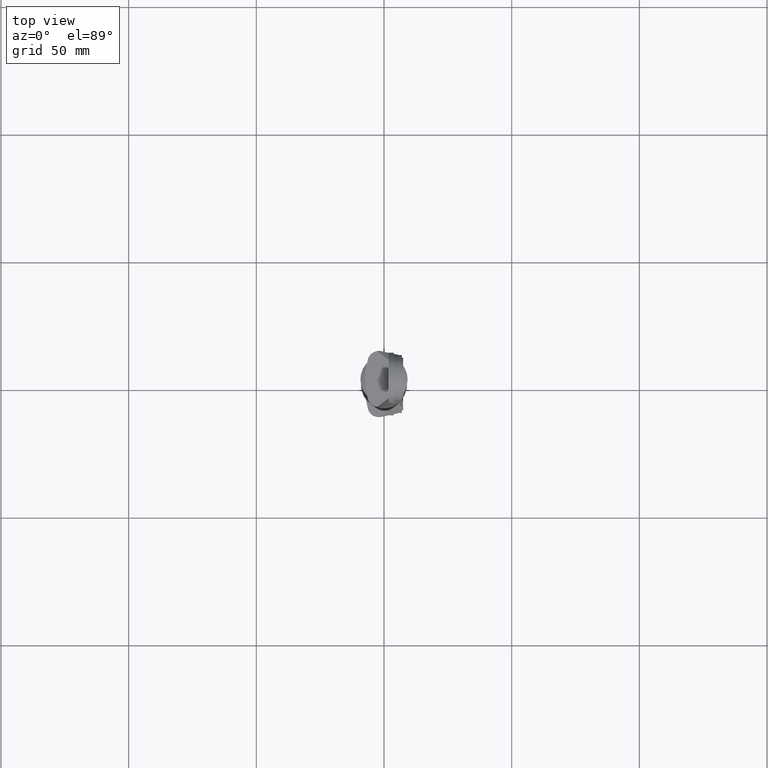
[diagram: clean part render]
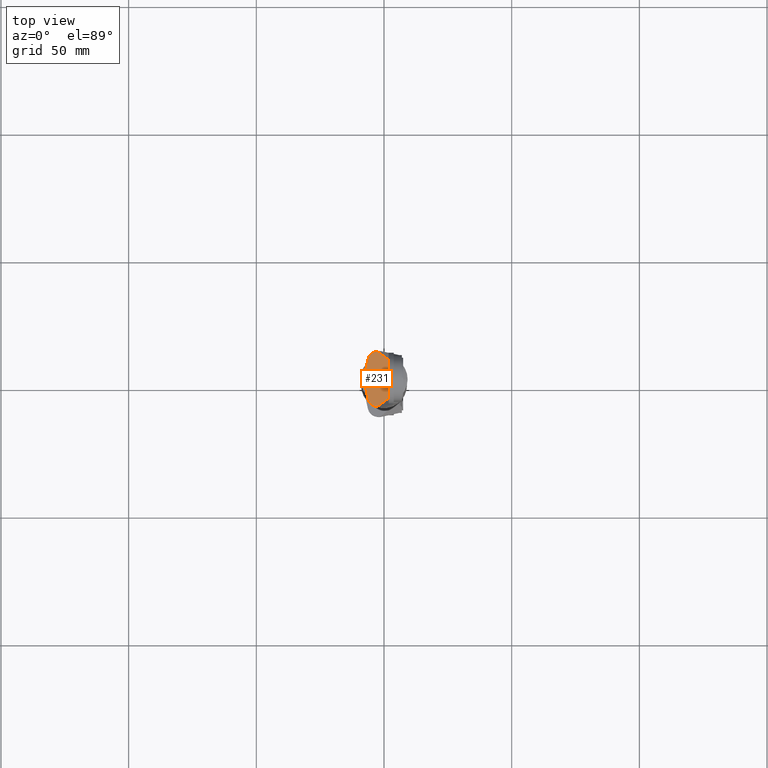
[diagram: same view with one face highlighted and labeled with its STEP entity id]
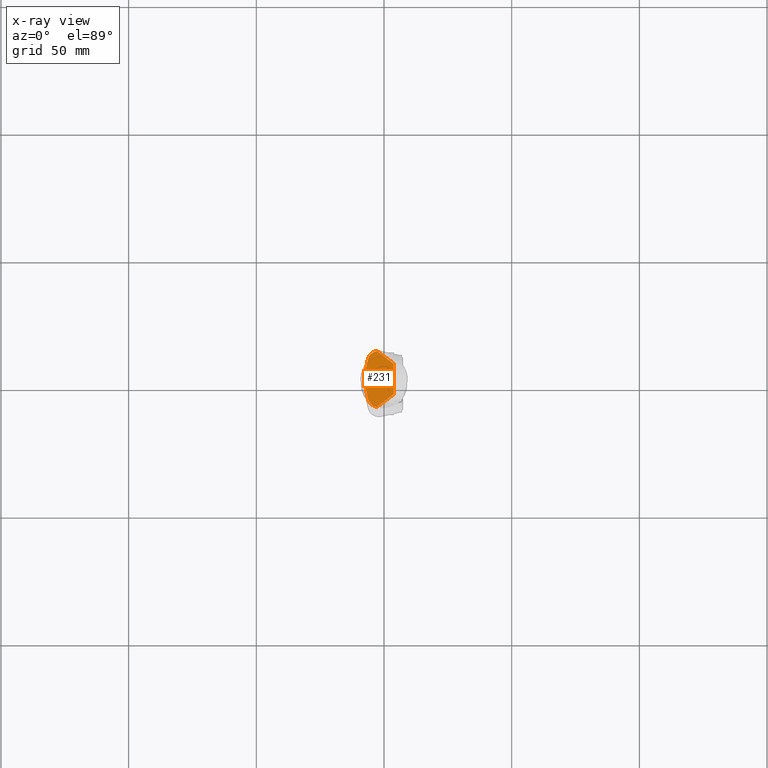
[diagram: x-ray of the same camera — body ghosted, the highlighted face saturated]
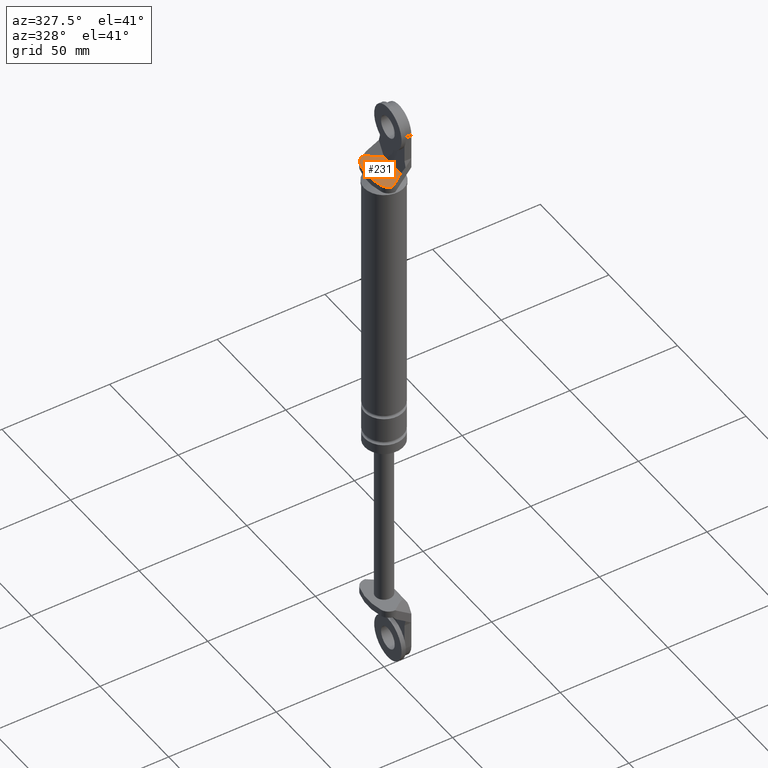
[diagram: same view with one face highlighted and labeled with its STEP entity id]
A machine part, top view. The second image highlights one B-rep face of the part: STEP entity #231.
The next image is the same camera in x-ray: the body ghosted, the highlighted face saturated — about 0% of this face is hidden behind the body in this view.
A second angle (auxiliary view) of the same face is appended — the face is thin or edge-on in the first view.
In plain terms, the highlighted planar face has unit normal (0, 0, -1).
Its self-contained STEP definition (entity closure, byte-faithful):
#231=ADVANCED_FACE('',(#564),#563,.F.);
#563=PLANE('',#1261);
#564=FACE_OUTER_BOUND('',#1262,.T.);
#1258=CARTESIAN_POINT('',(5.05814682001E+000,-1.31363496495E+001,9.21999850000E+001));
#1259=DIRECTION('',(0.00000000000E+000,0.00000000000E+000,-1.00000000000E+000));
#1260=DIRECTION('',(-1.00000000000E+000,0.00000000000E+000,0.00000000000E+000));
#1261=AXIS2_PLACEMENT_3D('',#1258,#1259,#1260);
#1262=EDGE_LOOP('',(#1889,#1890,#1891,#1892,#1893,#1894));
#1889=ORIENTED_EDGE('',*,*,#2224,.F.);
#1890=ORIENTED_EDGE('',*,*,#2241,.F.);
#1891=ORIENTED_EDGE('',*,*,#2242,.F.);
#1892=ORIENTED_EDGE('',*,*,#2235,.F.);
#1893=ORIENTED_EDGE('',*,*,#2225,.F.);
#1894=ORIENTED_EDGE('',*,*,#2201,.F.);
#2201=EDGE_CURVE('',#2642,#2649,#2650,.T.);
#2224=EDGE_CURVE('',#2799,#2642,#2806,.T.);
#2225=EDGE_CURVE('',#2649,#2812,#2813,.T.);
#2235=EDGE_CURVE('',#2812,#2878,#2879,.T.);
#2241=EDGE_CURVE('',#2911,#2799,#2918,.T.);
#2242=EDGE_CURVE('',#2878,#2911,#2924,.T.);
#2642=VERTEX_POINT('',#3857);
#2649=VERTEX_POINT('',#3861);
#2650=CIRCLE('',#3865,2.63230550000E+001);
#2799=VERTEX_POINT('',#3960);
#2806=CIRCLE('',#3967,4.39713591772E+000);
#2812=VERTEX_POINT('',#3968);
#2813=CIRCLE('',#3972,4.39713591772E+000);
#2878=VERTEX_POINT('',#4005);
#2879=LINE('',#4006,#4007);
#2911=VERTEX_POINT('',#4023);
#2918=LINE('',#4027,#4028);
#2924=LINE('',#4030,#4031);
#3857=CARTESIAN_POINT('',(-6.27804299844E+000,-7.92703620510E+000,9.21999850000E+001));
#3861=CARTESIAN_POINT('',(-6.27804299844E+000,7.92703620510E+000,9.21999850000E+001));
#3862=CARTESIAN_POINT('',(1.88230590000E+001,1.25154769361E-014,9.21999850000E+001));
#3863=DIRECTION('',(0.00000000000E+000,0.00000000000E+000,-1.00000000000E+000));
#3864=DIRECTION('',(1.00000000000E+000,-0.00000000000E+000,-0.00000000000E+000));
#3865=AXIS2_PLACEMENT_3D('',#3862,#3863,#3864);
#3960=CARTESIAN_POINT('',(-2.76594820790E+000,-1.09469580412E+001,9.21999850000E+001));
#3964=CARTESIAN_POINT('',(-2.08502827535E+000,-6.60286408228E+000,9.21999850000E+001));
#3965=DIRECTION('',(0.00000000000E+000,0.00000000000E+000,-1.00000000000E+000));
#3966=DIRECTION('',(1.00000000000E+000,-0.00000000000E+000,-0.00000000000E+000));
#3967=AXIS2_PLACEMENT_3D('',#3964,#3965,#3966);
#3968=CARTESIAN_POINT('',(-2.76594820790E+000,1.09469580413E+001,9.21999850000E+001));
#3969=CARTESIAN_POINT('',(-2.08502827535E+000,6.60286408228E+000,9.21999850000E+001));
#3970=DIRECTION('',(0.00000000000E+000,0.00000000000E+000,-1.00000000000E+000));
#3971=DIRECTION('',(1.00000000000E+000,-0.00000000000E+000,-0.00000000000E+000));
#3972=AXIS2_PLACEMENT_3D('',#3969,#3970,#3971);
#4005=CARTESIAN_POINT('',(3.80000300000E+000,6.00000000000E+000,9.21999850000E+001));
#4006=CARTESIAN_POINT('',(-2.76594820790E+000,1.09469580413E+001,9.21999850000E+001));
#4007=VECTOR('',#4008,8.22095548744E+000);
#4008=DIRECTION('',(7.98684680623E-001,-6.01749766047E-001,0.00000000000E+000));
#4023=CARTESIAN_POINT('',(3.80000300000E+000,-6.00000000000E+000,9.21999850000E+001));
#4027=CARTESIAN_POINT('',(3.80000300000E+000,-6.00000000000E+000,9.21999850000E+001));
#4028=VECTOR('',#4029,8.22095548744E+000);
#4029=DIRECTION('',(-7.98684680623E-001,-6.01749766047E-001,0.00000000000E+000));
#4030=CARTESIAN_POINT('',(3.80000300000E+000,6.00000000000E+000,9.21999850000E+001));
#4031=VECTOR('',#4032,1.20000000000E+001);
#4032=DIRECTION('',(0.00000000000E+000,-1.00000000000E+000,0.00000000000E+000));